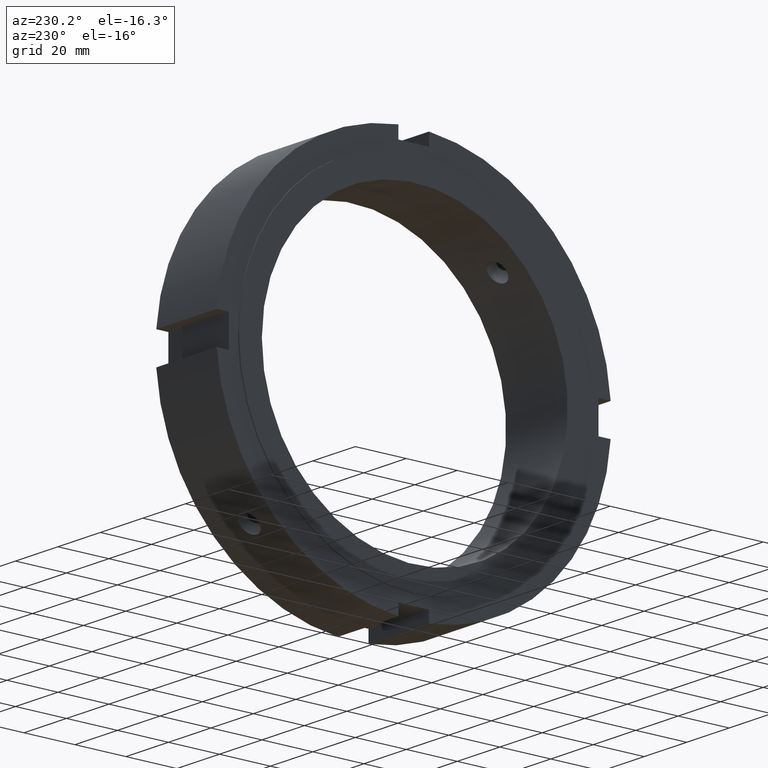
[diagram: clean part render]
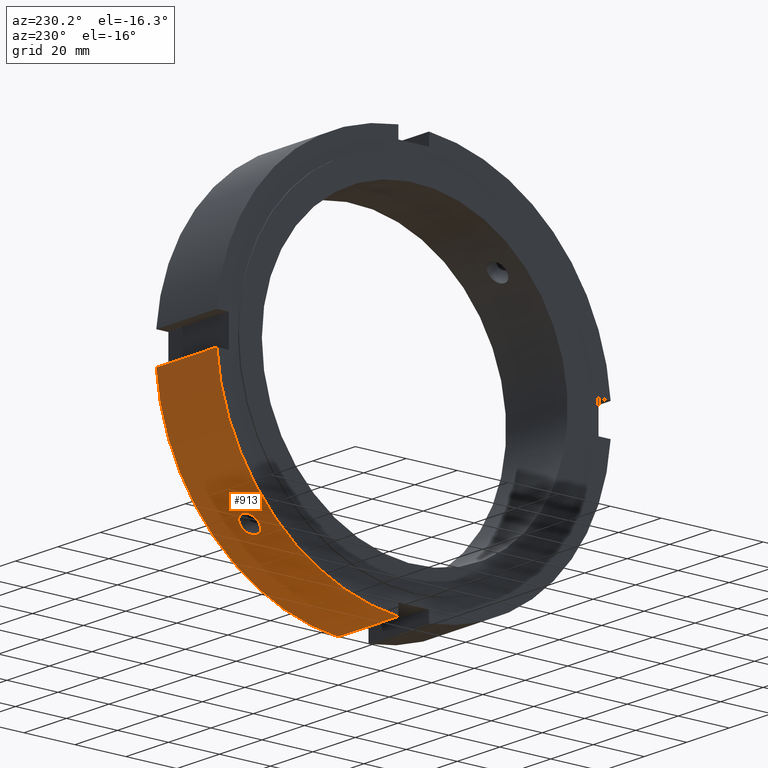
[diagram: same view with one face highlighted and labeled with its STEP entity id]
A machine part, auxiliary view. The second image highlights one B-rep face of the part: STEP entity #913.
In plain terms, the highlighted cylindrical surface (partial cylindrical patch) has radius 77.5 mm, axis along (1, 0, 0).
Its self-contained STEP definition (entity closure, byte-faithful):
#423=CARTESIAN_POINT('',(11.999999999999989,51.936479189997193,-57.522622761370926));
#424=VERTEX_POINT('',#423);
#425=CARTESIAN_POINT('',(11.999999999999986,51.936479189997193,-57.522622761370926));
#426=CARTESIAN_POINT('',(12.496063058857963,51.936479189997193,-57.522622761370926));
#427=CARTESIAN_POINT('',(13.025132376293204,52.010312172631146,-57.456228106413469));
#428=CARTESIAN_POINT('',(13.998305317108626,52.308812019340237,-57.184603746029303));
#429=CARTESIAN_POINT('',(14.442416225140773,52.533282042898087,-56.979183892343897));
#430=CARTESIAN_POINT('',(15.14372726624801,53.047067573834084,-56.50116583750404));
#431=CARTESIAN_POINT('',(15.44770537346659,53.370621118761164,-56.196651661537153));
#432=CARTESIAN_POINT('',(15.850844118342305,54.072183779836642,-55.521939788238306));
#433=CARTESIAN_POINT('',(15.949999999999989,54.45000606915373,-55.15154501476114));
#434=CARTESIAN_POINT('',(15.949999999999989,55.151545014761126,-54.450006069153744));
#435=CARTESIAN_POINT('',(15.850844118342307,55.521939788238299,-54.072183779836671));
#436=CARTESIAN_POINT('',(15.447705373466592,56.196651661537146,-53.370621118761186));
#437=CARTESIAN_POINT('',(15.143727266248014,56.501165837504033,-53.047067573834099));
#438=CARTESIAN_POINT('',(14.442416225140777,56.979183892343883,-52.533282042898094));
#439=CARTESIAN_POINT('',(13.998305317108635,57.184603746029303,-52.308812019340237));
#440=CARTESIAN_POINT('',(13.025132376293216,57.456228106413469,-52.010312172631146));
#441=CARTESIAN_POINT('',(12.496063058857965,57.522622761370911,-51.9364791899972));
#442=CARTESIAN_POINT('',(11.50393694114201,57.522622761370911,-51.9364791899972));
#443=CARTESIAN_POINT('',(10.974867623706764,57.456228106413462,-52.010312172631139));
#444=CARTESIAN_POINT('',(10.001694682891344,57.184603746029296,-52.308812019340223));
#445=CARTESIAN_POINT('',(9.557583774859202,56.979183892343883,-52.533282042898094));
#446=CARTESIAN_POINT('',(8.856272733751965,56.501165837504033,-53.047067573834099));
#447=CARTESIAN_POINT('',(8.552294626533382,56.196651661537146,-53.370621118761179));
#448=CARTESIAN_POINT('',(8.149155881657668,55.521939788238299,-54.072183779836671));
#449=CARTESIAN_POINT('',(8.049999999999987,55.151545014761126,-54.450006069153744));
#450=CARTESIAN_POINT('',(8.04999999999999,54.45000606915373,-55.15154501476114));
#451=CARTESIAN_POINT('',(8.149155881657675,54.072183779836642,-55.521939788238306));
#452=CARTESIAN_POINT('',(8.552294626533389,53.370621118761164,-56.196651661537153));
#453=CARTESIAN_POINT('',(8.856272733751968,53.047067573834084,-56.50116583750404));
#454=CARTESIAN_POINT('',(9.557583774859207,52.533282042898087,-56.979183892343897));
#455=CARTESIAN_POINT('',(10.001694682891353,52.308812019340237,-57.184603746029303));
#456=CARTESIAN_POINT('',(10.974867623706775,52.010312172631146,-57.456228106413469));
#457=CARTESIAN_POINT('',(11.503936941142015,51.936479189997193,-57.522622761370926));
#458=CARTESIAN_POINT('',(11.999999999999989,51.936479189997193,-57.522622761370926));
#459=B_SPLINE_CURVE_WITH_KNOTS('',3,(#425,#426,#427,#428,#429,#430,#431,#432,#433,#434,#435,#436,#437,#438,#439,#440,#441,#442,#443,#444,#445,#446,#447,#448,#449,#450,#451,#452,#453,#454,#455,#456,#457,#458),.UNSPECIFIED.,.T.,.U.,(4,2,2,2,2,2,2,2,2,2,2,2,2,2,2,2,4),(0.0,0.148818917657393,0.297637835314786,0.44645671902642,0.595275602738054,0.744094486449689,0.892913370161323,1.041732287818716,1.190551205476109,1.339370123133501,1.488189040790894,1.637007924502528,1.785826808214163,1.934645691925797,2.083464575637432,2.232283493294824,2.381102410952217),.UNSPECIFIED.);
#460=EDGE_CURVE('',#424,#424,#459,.T.);
#557=CARTESIAN_POINT('',(0.49999999999998,5.999999999999982,-77.26739286400182));
#558=VERTEX_POINT('',#557);
#567=CARTESIAN_POINT('',(28.999999999999986,5.999999999999982,-77.26739286400182));
#568=VERTEX_POINT('',#567);
#569=CARTESIAN_POINT('',(28.999999999999986,5.999999999999982,-77.26739286400182));
#570=DIRECTION('',(-1.0,0.0,0.0));
#571=VECTOR('',#570,28.500000000000007);
#572=LINE('',#569,#571);
#573=EDGE_CURVE('',#568,#558,#572,.T.);
#878=CARTESIAN_POINT('',(14.749999999999982,0.0,0.0));
#879=DIRECTION('',(1.0,0.0,0.0));
#880=DIRECTION('',(0.0,1.0,0.0));
#881=AXIS2_PLACEMENT_3D('',#878,#879,#880);
#882=CYLINDRICAL_SURFACE('',#881,77.5);
#883=ORIENTED_EDGE('',*,*,#573,.T.);
#884=CARTESIAN_POINT('',(0.49999999999998,77.26739286400182,-5.999999999999996));
#885=VERTEX_POINT('',#884);
#886=CARTESIAN_POINT('',(0.49999999999998,0.0,0.0));
#887=DIRECTION('',(1.0,0.0,0.0));
#888=DIRECTION('',(0.0,1.0,0.0));
#889=AXIS2_PLACEMENT_3D('',#886,#887,#888);
#890=CIRCLE('',#889,77.5);
#891=EDGE_CURVE('',#558,#885,#890,.T.);
#892=ORIENTED_EDGE('',*,*,#891,.T.);
#893=CARTESIAN_POINT('',(28.999999999999986,77.26739286400182,-5.999999999999996));
#894=VERTEX_POINT('',#893);
#895=CARTESIAN_POINT('',(0.49999999999998,77.26739286400182,-5.999999999999996));
#896=DIRECTION('',(1.0,0.0,0.0));
#897=VECTOR('',#896,28.500000000000007);
#898=LINE('',#895,#897);
#899=EDGE_CURVE('',#885,#894,#898,.T.);
#900=ORIENTED_EDGE('',*,*,#899,.T.);
#901=CARTESIAN_POINT('',(28.999999999999986,0.0,0.0));
#902=DIRECTION('',(1.0,0.0,0.0));
#903=DIRECTION('',(0.0,1.0,0.0));
#904=AXIS2_PLACEMENT_3D('',#901,#902,#903);
#905=CIRCLE('',#904,77.5);
#906=EDGE_CURVE('',#568,#894,#905,.T.);
#907=ORIENTED_EDGE('',*,*,#906,.F.);
#908=EDGE_LOOP('',(#883,#892,#900,#907));
#909=FACE_OUTER_BOUND('',#908,.T.);
#910=ORIENTED_EDGE('',*,*,#460,.T.);
#911=EDGE_LOOP('',(#910));
#912=FACE_BOUND('',#911,.T.);
#913=ADVANCED_FACE('',(#909,#912),#882,.T.);